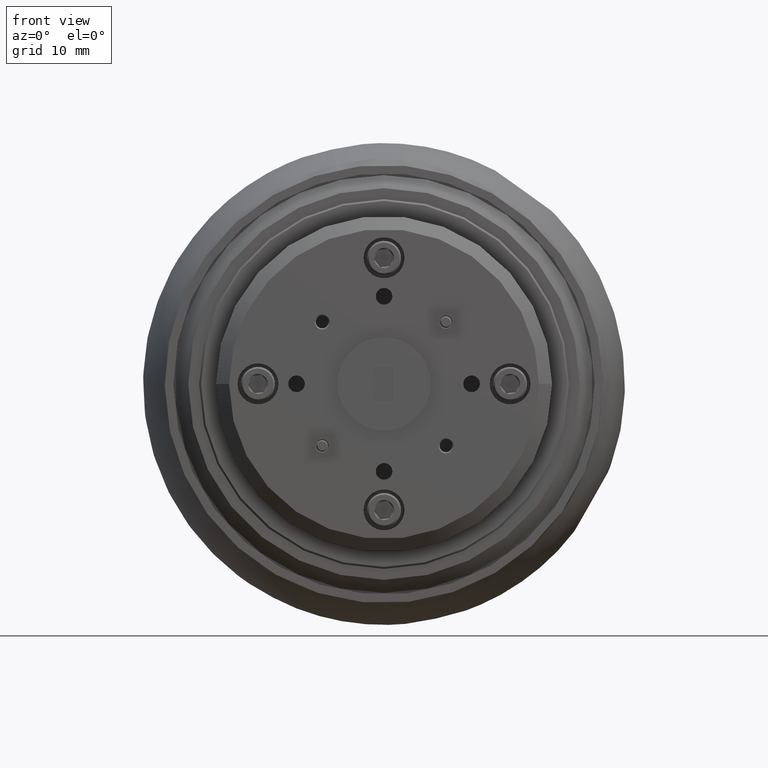
[diagram: clean part render]
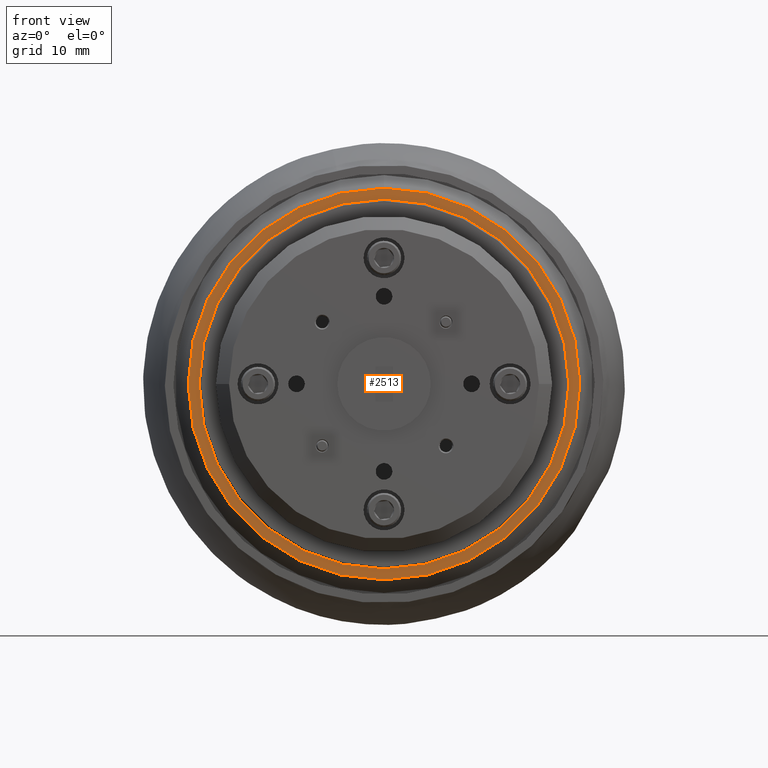
[diagram: same view with one face highlighted and labeled with its STEP entity id]
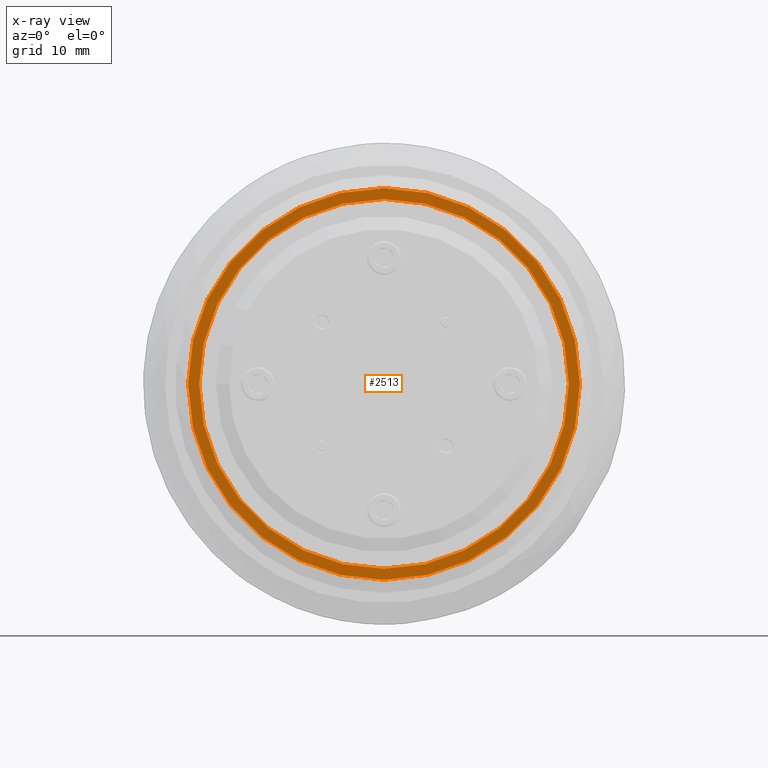
[diagram: x-ray of the same camera — body ghosted, the highlighted face saturated]
A machine part, front view. The second image highlights one B-rep face of the part: STEP entity #2513.
The next image is the same camera in x-ray: the body ghosted, the highlighted face saturated — about 0% of this face is hidden behind the body in this view.
In plain terms, the highlighted planar face has unit normal (-0, 1, 0).
Its self-contained STEP definition (entity closure, byte-faithful):
#596 = CARTESIAN_POINT ( 'NONE',  ( 0.0000000000000000000, -0.4559999999999995700, 0.0000000000000000000 ) ) ;
#962 = VERTEX_POINT ( 'NONE', #9756 ) ;
#1291 = ORIENTED_EDGE ( 'NONE', *, *, #10302, .F. ) ;
#1874 = AXIS2_PLACEMENT_3D ( 'NONE', #7617, #10114, #2810 ) ;
#2372 = CARTESIAN_POINT ( 'NONE',  ( 0.0000000000000000000, -0.4559999999999995700, 0.9899999999999999900 ) ) ;
#2513 = ADVANCED_FACE ( 'NONE', ( #6728, #12897 ), #11538, .F. ) ;
#2534 = CARTESIAN_POINT ( 'NONE',  ( 0.0000000000000000000, -0.4559999999999995700, 1.048640772573399500 ) ) ;
#2651 = CARTESIAN_POINT ( 'NONE',  ( 0.0000000000000000000, -0.4559999999999995700, 0.0000000000000000000 ) ) ;
#2810 = DIRECTION ( 'NONE',  ( 0.0000000000000000000, 0.0000000000000000000, 1.000000000000000000 ) ) ;
#2811 = AXIS2_PLACEMENT_3D ( 'NONE', #2651, #7661, #10058 ) ;
#3153 = DIRECTION ( 'NONE',  ( 0.0000000000000000000, -1.000000000000000000, 0.0000000000000000000 ) ) ;
#3345 = ORIENTED_EDGE ( 'NONE', *, *, #8199, .T. ) ;
#3527 = CIRCLE ( 'NONE', #1874, 1.048640772573399500 ) ;
#4141 = CIRCLE ( 'NONE', #2811, 0.9899999999999999900 ) ;
#4735 = ORIENTED_EDGE ( 'NONE', *, *, #7516, .F. ) ;
#4881 = CARTESIAN_POINT ( 'NONE',  ( 0.0000000000000000000, -0.4559999999999995700, 0.0000000000000000000 ) ) ;
#5028 = VERTEX_POINT ( 'NONE', #2534 ) ;
#5311 = EDGE_CURVE ( 'NONE', #5028, #962, #12569, .T. ) ;
#5742 = AXIS2_PLACEMENT_3D ( 'NONE', #12788, #13162, #5773 ) ;
#5773 = DIRECTION ( 'NONE',  ( 0.0000000000000000000, 0.0000000000000000000, 1.000000000000000000 ) ) ;
#5778 = ORIENTED_EDGE ( 'NONE', *, *, #5311, .T. ) ;
#6728 = FACE_OUTER_BOUND ( 'NONE', #12075, .T. ) ;
#7403 = VERTEX_POINT ( 'NONE', #2372 ) ;
#7516 = EDGE_CURVE ( 'NONE', #7403, #13388, #4141, .T. ) ;
#7617 = CARTESIAN_POINT ( 'NONE',  ( 0.0000000000000000000, -0.4559999999999995700, 0.0000000000000000000 ) ) ;
#7661 = DIRECTION ( 'NONE',  ( 0.0000000000000000000, -1.000000000000000000, 0.0000000000000000000 ) ) ;
#8199 = EDGE_CURVE ( 'NONE', #962, #5028, #3527, .T. ) ;
#9720 = AXIS2_PLACEMENT_3D ( 'NONE', #596, #3153, #15211 ) ;
#9756 = CARTESIAN_POINT ( 'NONE',  ( 1.327077203557579100E-016, -0.4559999999999995700, -1.048640772573399500 ) ) ;
#10058 = DIRECTION ( 'NONE',  ( 0.0000000000000000000, 0.0000000000000000000, 1.000000000000000000 ) ) ;
#10114 = DIRECTION ( 'NONE',  ( 0.0000000000000000000, -1.000000000000000000, 0.0000000000000000000 ) ) ;
#10302 = EDGE_CURVE ( 'NONE', #13388, #7403, #11406, .T. ) ;
#11406 = CIRCLE ( 'NONE', #15112, 0.9899999999999999900 ) ;
#11538 = PLANE ( 'NONE',  #5742 ) ;
#11855 = EDGE_LOOP ( 'NONE', ( #4735, #1291 ) ) ;
#12075 = EDGE_LOOP ( 'NONE', ( #5778, #3345 ) ) ;
#12429 = DIRECTION ( 'NONE',  ( 0.0000000000000000000, -1.000000000000000000, 0.0000000000000000000 ) ) ;
#12569 = CIRCLE ( 'NONE', #9720, 1.048640772573399500 ) ;
#12788 = CARTESIAN_POINT ( 'NONE',  ( -1.118640772573400200, -0.4559999999999995700, 0.0000000000000000000 ) ) ;
#12897 = FACE_BOUND ( 'NONE', #11855, .T. ) ;
#13162 = DIRECTION ( 'NONE',  ( -0.0000000000000000000, 1.000000000000000000, 0.0000000000000000000 ) ) ;
#13388 = VERTEX_POINT ( 'NONE', #15888 ) ;
#13566 = DIRECTION ( 'NONE',  ( 0.0000000000000000000, 0.0000000000000000000, 1.000000000000000000 ) ) ;
#15112 = AXIS2_PLACEMENT_3D ( 'NONE', #4881, #12429, #13566 ) ;
#15211 = DIRECTION ( 'NONE',  ( 0.0000000000000000000, 0.0000000000000000000, 1.000000000000000000 ) ) ;
#15888 = CARTESIAN_POINT ( 'NONE',  ( 1.212400331155879700E-016, -0.4559999999999995700, -0.9899999999999999900 ) ) ;